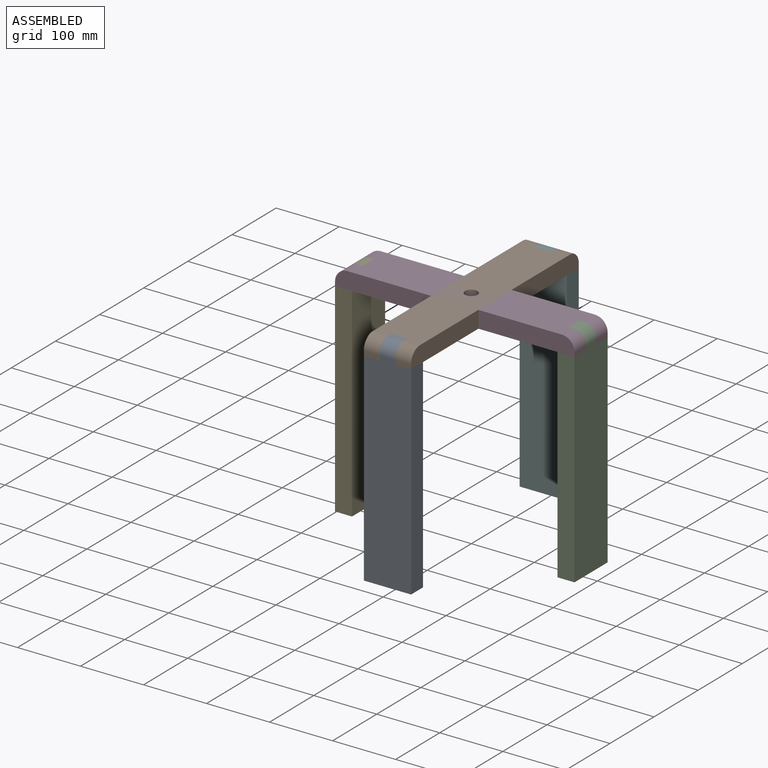
[diagram: assembled view]
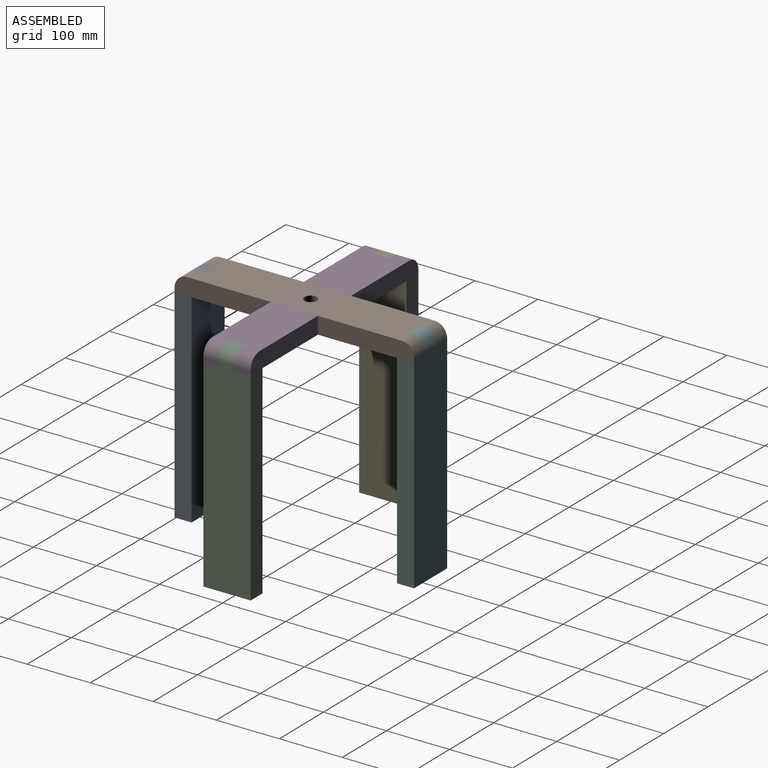
[diagram: assembled view, second angle]
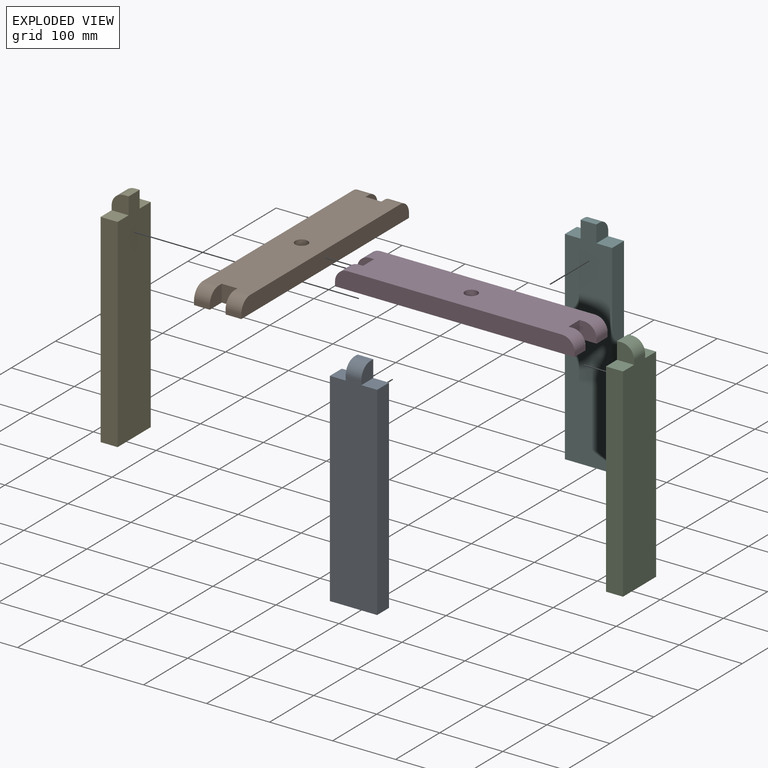
[diagram: exploded view]
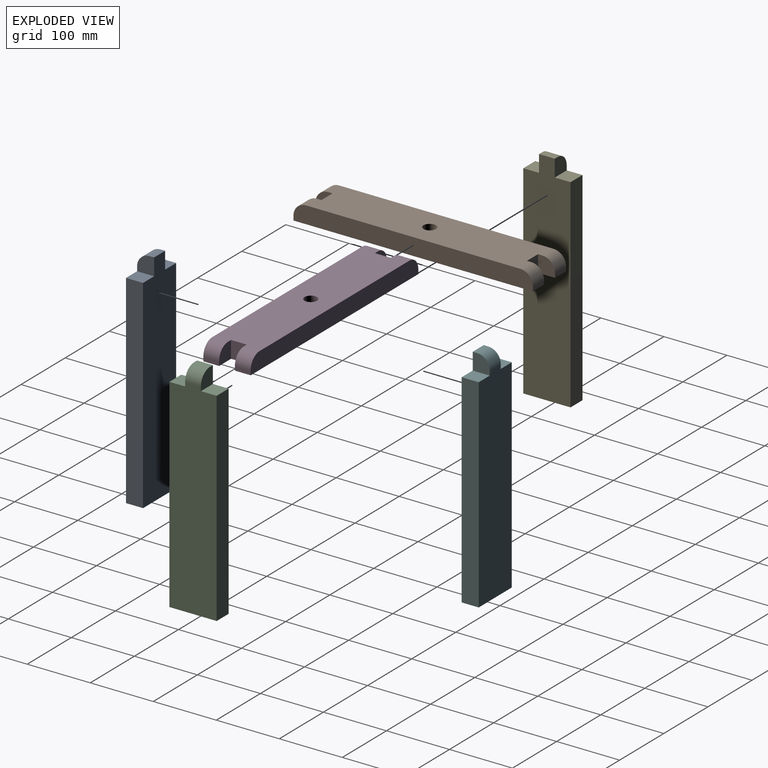
[diagram: exploded view, second angle]
ASSEMBLY  parts=6 mates=2
PART A: 11 faces, bbox 75x27x350 mm
  f0: plane 25x7mm, normal (0,0,1), area 175mm2, adj f2,f7,f9,f10
  f1: plane 330x75mm, normal (0,-1,0), area 24400mm2, adj f3,f4,f5,f6,f7,f8,f9,f10
  f2: plane 350x75mm, normal (0,1,0), area 24900mm2, adj f0,f3,f4,f5,f6,f7,f8,f9
  f3: plane 75x27mm, normal (0,0,-1), area 2025mm2, adj f1,f2,f4,f5
  f4: plane 323x27mm, normal (1,0,0), area 8721mm2, adj f1,f2,f3,f6
  f5: plane 323x27mm, normal (-1,0,0), area 8721mm2, adj f1,f2,f3,f8
  f6: plane 27x25mm, normal (0,0,1), area 675mm2, adj f1,f2,f4,f7
  f7: plane 27x27mm, normal (1,0,0), area 643.2mm2, adj f0,f1,f2,f6,f10
  f8: plane 27x25mm, normal (0,0,1), area 675mm2, adj f1,f2,f5,f9
  f9: plane 27x27mm, normal (-1,0,0), area 643.2mm2, adj f0,f1,f2,f8,f10
  f10: cylinder r=20mm len=25mm, axis (1,0,0), area 785.4mm2, adj f0,f1,f7,f9
PART B: 19 faces, bbox 380x75x27 mm
  f0: plane 25x7mm, normal (1,0,0), area 175mm2, adj f3,f7,f8,f15
  f1: plane 25x7mm, normal (-1,0,0), area 175mm2, adj f3,f7,f11,f14
  f2: plane 340x75mm, normal (0,0,1), area 24835.8mm2, adj f5,f7,f8,f9,f10,f11,f12,f13
  f3: plane 380x75mm, normal (0,0,-1), area 26835.8mm2, adj f0,f1,f4,f5,f6,f7,f8,f9
  f4: plane 25x7mm, normal (1,0,0), area 175mm2, adj f3,f5,f9,f17
  f5: plane 380x27mm, normal (0,1,0), area 10088.3mm2, adj f2,f3,f4,f6,f16,f17
  f6: plane 25x7mm, normal (-1,0,0), area 175mm2, adj f3,f5,f13,f16
  f7: plane 380x27mm, normal (0,-1,0), area 10088.3mm2, adj f0,f1,f2,f3,f14,f15
  f8: plane 27x27mm, normal (0,1,0), area 643.2mm2, adj f0,f2,f3,f10,f15
  f9: plane 27x27mm, normal (0,-1,0), area 643.2mm2, adj f2,f3,f4,f10,f17
  f10: plane 27x25mm, normal (1,0,0), area 675mm2, adj f2,f3,f8,f9
  f11: plane 27x27mm, normal (0,1,0), area 643.2mm2, adj f1,f2,f3,f12,f14
  f12: plane 27x25mm, normal (-1,0,0), area 675mm2, adj f2,f3,f11,f13
  f13: plane 27x27mm, normal (0,-1,0), area 643.2mm2, adj f2,f3,f6,f12,f16
  f14: cylinder r=20mm len=25mm, axis (0,1,0), area 785.4mm2, adj f1,f2,f7,f11
  f15: cylinder r=20mm len=25mm, axis (0,-1,0), area 785.4mm2, adj f0,f2,f7,f8
  f16: cylinder r=20mm len=25mm, axis (0,1,0), area 785.4mm2, adj f2,f5,f6,f13
  f17: cylinder r=20mm len=25mm, axis (0,-1,0), area 785.4mm2, adj f2,f4,f5,f9
  f18: cylinder r=10mm len=27mm, axis (0,0,1), area 1696.5mm2, adj f2,f3
PART C: same geometry as A
PART D: same geometry as B
PART E: same geometry as A
PART F: same geometry as A
PLACE A t=(0,-163,-148)mm
PLACE B rot(axis=(0,0,1),90deg) t=(0,0,0)mm
PLACE C rot(axis=(0,0,1),90deg) t=(163,0,-148)mm
PLACE D rot(axis=(0,0,1),180deg) t=(0,0,0)mm
PLACE E rot(axis=(0,0,-1),90deg) t=(-163,0,-148)mm
PLACE F rot(axis=(0,0,1),180deg) t=(0,163,-148)mm
MATE fastened B.f10 <-> F.f2  axis (0,1,0) through (0,163,27)mm
MATE fastened A.f2 <-> B.f12  axis (0,1,0) through (0,-163,27)mm
